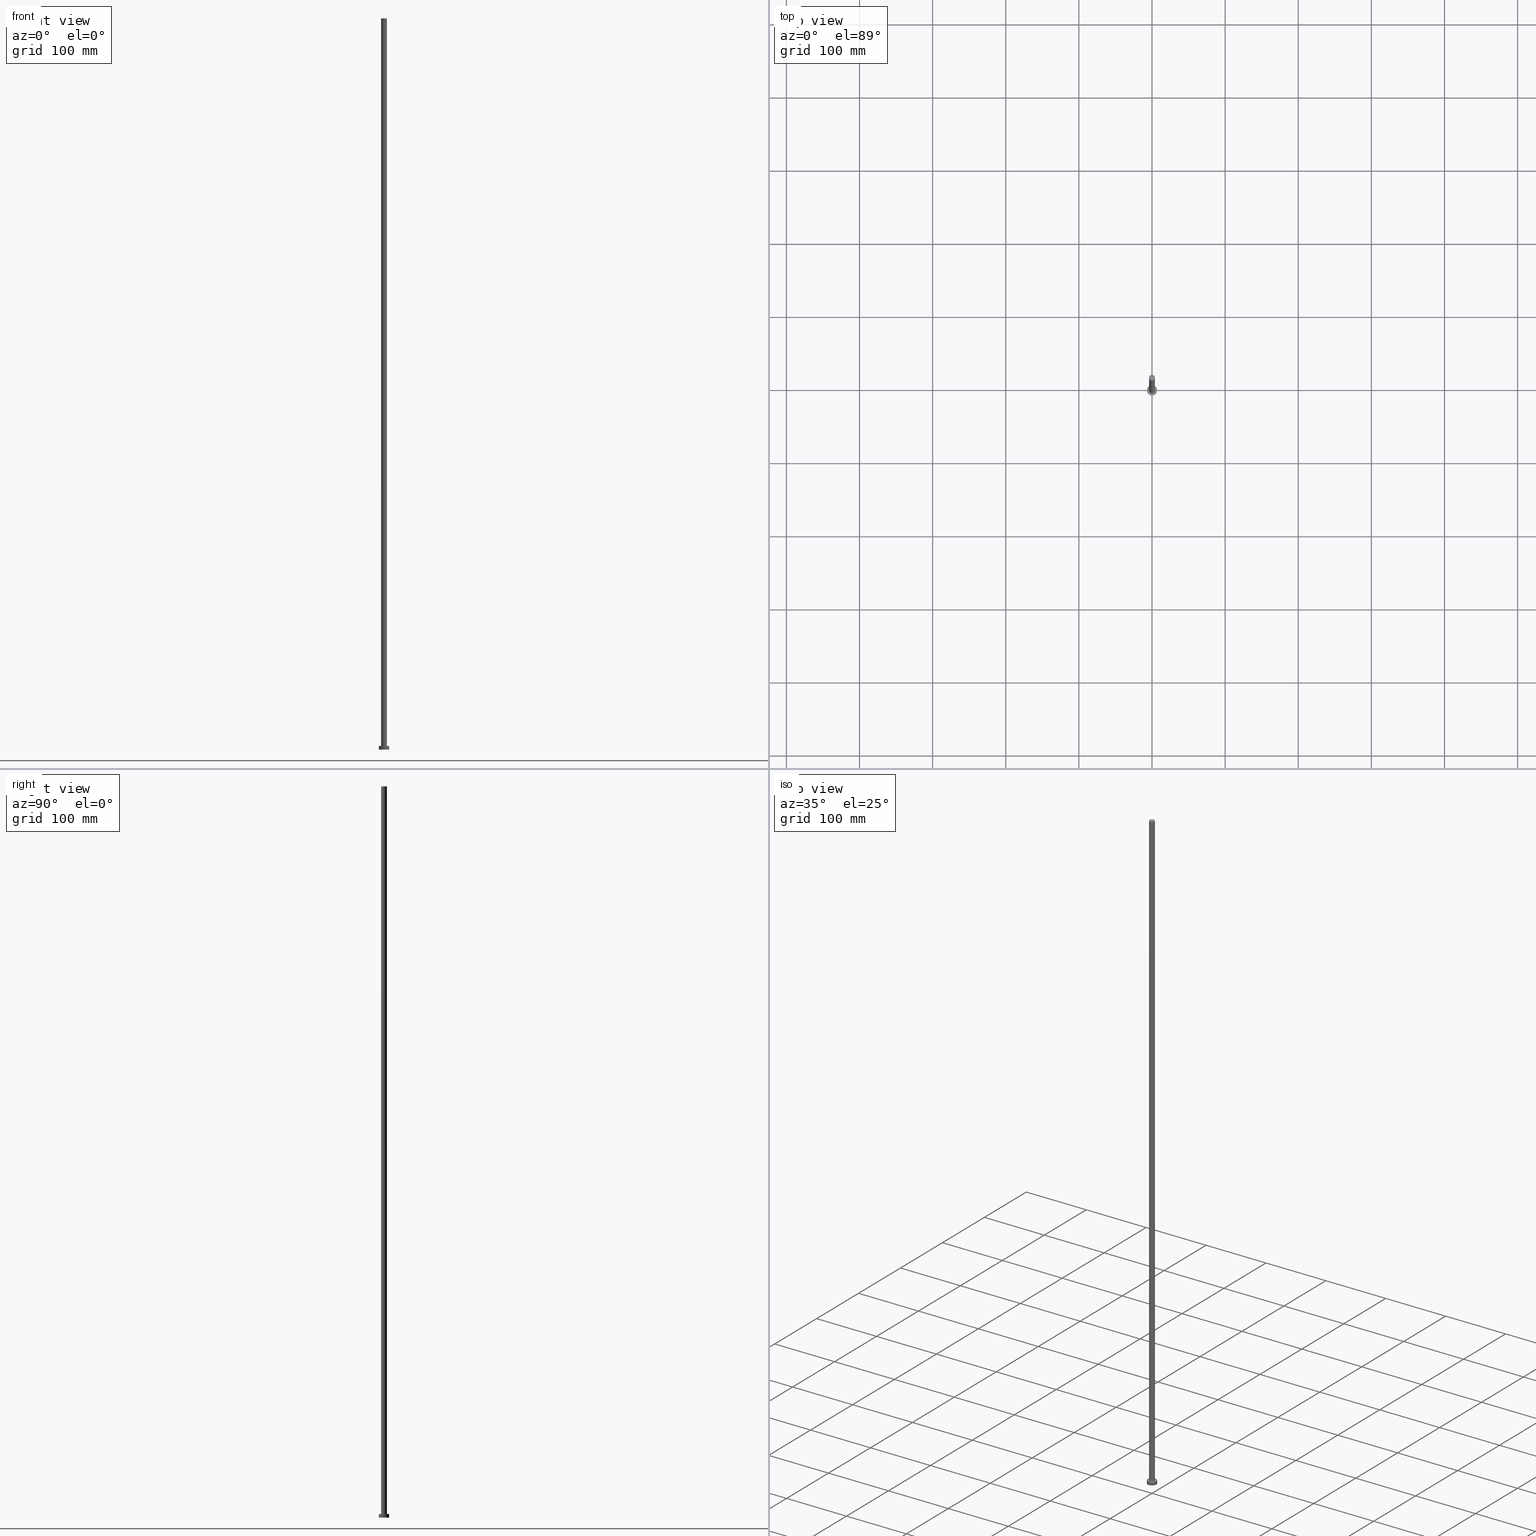
[diagram: canonical four-view strip — front | top / right | iso, engineering-drawing reading convention]
A machine part, canonical four-view strip (front | top / right | iso — engineering-drawing reading convention). The complete STEP part file that produces these views, byte-faithful:
ISO-10303-21;
HEADER;
FILE_DESCRIPTION (( 'STEP AP203' ),
    '1' );
FILE_NAME ('0597.STEP',
    '2023-02-13T12:55:46',
    ( '' ),
    ( '' ),
    'SwSTEP 2.0',
    'SolidWorks 2019',
    '' );
FILE_SCHEMA (( 'CONFIG_CONTROL_DESIGN' ));
ENDSEC;

DATA;
#1 = ORIENTED_EDGE ( 'NONE', *, *, #62, .T. ) ;
#2 = APPLICATION_CONTEXT ( 'configuration controlled 3d designs of mechanical parts and assemblies' ) ;
#3 = DIRECTION ( 'NONE',  ( 1.000000000000000000, 0.000000000000000000, -0.000000000000000000 ) ) ;
#4 = AXIS2_PLACEMENT_3D ( 'NONE', #193, #252, #125 ) ;
#5 = AXIS2_PLACEMENT_3D ( 'NONE', #164, #246, #150 ) ;
#6 = CARTESIAN_POINT ( 'NONE',  ( 0.000000000000000000, 0.000000000000000000, 0.000000000000000000 ) ) ;
#7 = CARTESIAN_POINT ( 'NONE',  ( 0.000000000000000000, 0.000000000000000000, 1000.000000000000000 ) ) ;
#8 = ORIENTED_EDGE ( 'NONE', *, *, #182, .T. ) ;
#9 = DATE_TIME_ROLE ( 'creation_date' ) ;
#10 = CARTESIAN_POINT ( 'NONE',  ( 7.000000000000000000, 8.572527594031473190E-16, 5.000000000000000000 ) ) ;
#11 = DIRECTION ( 'NONE',  ( -0.000000000000000000, -0.000000000000000000, -1.000000000000000000 ) ) ;
#12 = VERTEX_POINT ( 'NONE', #189 ) ;
#13 = CARTESIAN_POINT ( 'NONE',  ( 0.000000000000000000, 0.000000000000000000, 5.000000000000000000 ) ) ;
#14 = FACE_OUTER_BOUND ( 'NONE', #57, .T. ) ;
#15 = AXIS2_PLACEMENT_3D ( 'NONE', #176, #127, #87 ) ;
#16 = DATE_AND_TIME ( #26, #130 ) ;
#17 = CIRCLE ( 'NONE', #30, 4.000000000000000000 ) ;
#18 = APPROVAL_STATUS ( 'not_yet_approved' ) ;
#19 = APPROVAL_ROLE ( '' ) ;
#20 = EDGE_LOOP ( 'NONE', ( #215, #221, #204, #32 ) ) ;
#21 = APPLICATION_PROTOCOL_DEFINITION ( 'international standard', 'config_control_design', 1994, #2 ) ;
#22 = EDGE_LOOP ( 'NONE', ( #39, #185 ) ) ;
#23 = CARTESIAN_POINT ( 'NONE',  ( 7.000000000000000000, 8.572527594031473190E-16, 5.000000000000000000 ) ) ;
#24 = APPLICATION_PROTOCOL_DEFINITION ( 'international standard', 'config_control_design', 1994, #65 ) ;
#25 =( GEOMETRIC_REPRESENTATION_CONTEXT ( 3 ) GLOBAL_UNCERTAINTY_ASSIGNED_CONTEXT ( ( #138 ) ) GLOBAL_UNIT_ASSIGNED_CONTEXT ( ( #155, #177, #108 ) ) REPRESENTATION_CONTEXT ( 'NONE', 'WORKASPACE' ) );
#26 = CALENDAR_DATE ( 2023, 13, 2 ) ;
#27 = APPROVAL ( #18, 'NEUR�EN�' ) ;
#28 = VECTOR ( 'NONE', #165, 1000.000000000000000 ) ;
#29 = PLANE ( 'NONE',  #52 ) ;
#30 = AXIS2_PLACEMENT_3D ( 'NONE', #49, #226, #172 ) ;
#31 = PRODUCT ( '0597', '0597', '', ( #249 ) ) ;
#32 = ORIENTED_EDGE ( 'NONE', *, *, #134, .F. ) ;
#33 = CARTESIAN_POINT ( 'NONE',  ( 0.000000000000000000, 0.000000000000000000, 5.000000000000000000 ) ) ;
#34 = EDGE_LOOP ( 'NONE', ( #1, #8 ) ) ;
#35 = DIRECTION ( 'NONE',  ( -1.000000000000000000, 0.000000000000000000, 0.000000000000000000 ) ) ;
#36 = CARTESIAN_POINT ( 'NONE',  ( -7.000000000000000000, 0.000000000000000000, 5.000000000000000000 ) ) ;
#37 = LINE ( 'NONE', #71, #145 ) ;
#38 = LOCAL_TIME ( 13, 55, 46.00000000000000000, #107 ) ;
#39 = ORIENTED_EDGE ( 'NONE', *, *, #161, .F. ) ;
#40 = CARTESIAN_POINT ( 'NONE',  ( 0.000000000000000000, 0.000000000000000000, 1000.000000000000000 ) ) ;
#41 = AXIS2_PLACEMENT_3D ( 'NONE', #13, #78, #59 ) ;
#42 = ORIENTED_EDGE ( 'NONE', *, *, #62, .F. ) ;
#43 = ADVANCED_FACE ( 'NONE', ( #248 ), #29, .F. ) ;
#44 = VERTEX_POINT ( 'NONE', #136 ) ;
#45 = CARTESIAN_POINT ( 'NONE',  ( 0.000000000000000000, 0.000000000000000000, 5.000000000000000000 ) ) ;
#46 = PERSON_AND_ORGANIZATION_ROLE ( 'design_owner' ) ;
#47 = APPROVAL_PERSON_ORGANIZATION ( #95, #207, #19 ) ;
#48 = DATE_AND_TIME ( #178, #66 ) ;
#49 = CARTESIAN_POINT ( 'NONE',  ( 0.000000000000000000, 0.000000000000000000, 5.000000000000000000 ) ) ;
#50 = DIRECTION ( 'NONE',  ( 1.000000000000000000, 0.000000000000000000, -0.000000000000000000 ) ) ;
#51 = DIRECTION ( 'NONE',  ( -0.000000000000000000, -0.000000000000000000, -1.000000000000000000 ) ) ;
#52 = AXIS2_PLACEMENT_3D ( 'NONE', #6, #113, #50 ) ;
#53 = FACE_OUTER_BOUND ( 'NONE', #201, .T. ) ;
#54 = ORIENTED_EDGE ( 'NONE', *, *, #247, .F. ) ;
#55 = LINE ( 'NONE', #209, #63 ) ;
#56 = AXIS2_PLACEMENT_3D ( 'NONE', #106, #183, #3 ) ;
#57 = EDGE_LOOP ( 'NONE', ( #239, #217, #175, #237 ) ) ;
#58 = CARTESIAN_POINT ( 'NONE',  ( 0.000000000000000000, 0.000000000000000000, 5.000000000000000000 ) ) ;
#59 = DIRECTION ( 'NONE',  ( 1.000000000000000000, 0.000000000000000000, 0.000000000000000000 ) ) ;
#60 = ADVANCED_FACE ( 'NONE', ( #53 ), #202, .T. ) ;
#61 = AXIS2_PLACEMENT_3D ( 'NONE', #205, #70, #167 ) ;
#62 = EDGE_CURVE ( 'NONE', #12, #168, #91, .T. ) ;
#63 = VECTOR ( 'NONE', #128, 1000.000000000000000 ) ;
#64 = PLANE ( 'NONE',  #56 ) ;
#65 = APPLICATION_CONTEXT ( 'configuration controlled 3d designs of mechanical parts and assemblies' ) ;
#66 = LOCAL_TIME ( 13, 55, 46.00000000000000000, #101 ) ;
#67 = ORIENTED_EDGE ( 'NONE', *, *, #190, .F. ) ;
#68 = LOCAL_TIME ( 13, 55, 46.00000000000000000, #220 ) ;
#69 = APPROVAL_ROLE ( '' ) ;
#70 = DIRECTION ( 'NONE',  ( 0.000000000000000000, 0.000000000000000000, 1.000000000000000000 ) ) ;
#71 = CARTESIAN_POINT ( 'NONE',  ( -4.000000000000000000, 0.000000000000000000, 1000.000000000000000 ) ) ;
#72 = FACE_OUTER_BOUND ( 'NONE', #20, .T. ) ;
#73 = CLOSED_SHELL ( 'NONE', ( #212, #187, #60, #236, #43, #240, #243 ) ) ;
#74 = CC_DESIGN_DATE_AND_TIME_ASSIGNMENT ( #255, #157, ( #210 ) ) ;
#75 = COORDINATED_UNIVERSAL_TIME_OFFSET ( 1, 0, .AHEAD. ) ;
#76 = DIRECTION ( 'NONE',  ( 0.000000000000000000, 0.000000000000000000, 1.000000000000000000 ) ) ;
#77 = DIRECTION ( 'NONE',  ( 0.000000000000000000, 0.000000000000000000, 1.000000000000000000 ) ) ;
#78 = DIRECTION ( 'NONE',  ( 0.000000000000000000, 0.000000000000000000, 1.000000000000000000 ) ) ;
#79 = CC_DESIGN_PERSON_AND_ORGANIZATION_ASSIGNMENT ( #228, #46, ( #31 ) ) ;
#80 = EDGE_LOOP ( 'NONE', ( #67, #208 ) ) ;
#81 = FACE_OUTER_BOUND ( 'NONE', #34, .T. ) ;
#82 = AXIS2_PLACEMENT_3D ( 'NONE', #7, #147, #231 ) ;
#83 = MANIFOLD_SOLID_BREP ( 'P�idat vysunut�m3', #73 ) ;
#84 = LOCAL_TIME ( 13, 55, 46.00000000000000000, #75 ) ;
#85 = PERSON_AND_ORGANIZATION_ROLE ( 'classification_officer' ) ;
#86 = ORIENTED_EDGE ( 'NONE', *, *, #134, .T. ) ;
#87 = DIRECTION ( 'NONE',  ( -1.000000000000000000, 0.000000000000000000, 0.000000000000000000 ) ) ;
#88 = APPROVAL ( #133, 'NEUR�EN�' ) ;
#89 = ORIENTED_EDGE ( 'NONE', *, *, #92, .T. ) ;
#90 = SECURITY_CLASSIFICATION_LEVEL ( 'unclassified' ) ;
#91 = CIRCLE ( 'NONE', #5, 7.000000000000000000 ) ;
#92 = EDGE_CURVE ( 'NONE', #44, #139, #218, .T. ) ;
#93 = APPROVAL_STATUS ( 'not_yet_approved' ) ;
#94 = CARTESIAN_POINT ( 'NONE',  ( -4.000000000000000000, 0.000000000000000000, 5.000000000000000000 ) ) ;
#95 = PERSON_AND_ORGANIZATION ( #214, #199 ) ;
#96 = APPROVAL_PERSON_ORGANIZATION ( #227, #88, #69 ) ;
#97 = CC_DESIGN_PERSON_AND_ORGANIZATION_ASSIGNMENT ( #163, #174, ( #140 ) ) ;
#98 = AXIS2_PLACEMENT_3D ( 'NONE', #116, #137, #222 ) ;
#99 = APPROVAL_DATE_TIME ( #16, #88 ) ;
#100 = PRODUCT_DEFINITION_SHAPE ( 'NONE', 'NONE',  #140 ) ;
#101 = COORDINATED_UNIVERSAL_TIME_OFFSET ( 1, 0, .AHEAD. ) ;
#102 = PRODUCT_RELATED_PRODUCT_CATEGORY ( 'detail', '', ( #31 ) ) ;
#103 = APPROVAL_PERSON_ORGANIZATION ( #216, #27, #122 ) ;
#104 = PERSON_AND_ORGANIZATION_ROLE ( 'creator' ) ;
#105 = ORIENTED_EDGE ( 'NONE', *, *, #173, .T. ) ;
#106 = CARTESIAN_POINT ( 'NONE',  ( 0.000000000000000000, 0.000000000000000000, 5.000000000000000000 ) ) ;
#107 = COORDINATED_UNIVERSAL_TIME_OFFSET ( 1, 0, .AHEAD. ) ;
#108 =( NAMED_UNIT ( * ) SI_UNIT ( $, .STERADIAN. ) SOLID_ANGLE_UNIT ( ) );
#109 = EDGE_CURVE ( 'NONE', #168, #146, #206, .T. ) ;
#110 = PERSON_AND_ORGANIZATION ( #214, #199 ) ;
#111 = CC_DESIGN_APPROVAL ( #88, ( #140 ) ) ;
#112 = AXIS2_PLACEMENT_3D ( 'NONE', #115, #76, #188 ) ;
#113 = DIRECTION ( 'NONE',  ( 0.000000000000000000, 0.000000000000000000, 1.000000000000000000 ) ) ;
#114 = AXIS2_PLACEMENT_3D ( 'NONE', #58, #120, #170 ) ;
#115 = CARTESIAN_POINT ( 'NONE',  ( 0.000000000000000000, 0.000000000000000000, 1000.000000000000000 ) ) ;
#116 = CARTESIAN_POINT ( 'NONE',  ( 0.000000000000000000, 0.000000000000000000, 0.000000000000000000 ) ) ;
#117 = CARTESIAN_POINT ( 'NONE',  ( 4.000000000000000000, 4.898587196589411843E-16, 5.000000000000000000 ) ) ;
#118 = CC_DESIGN_PERSON_AND_ORGANIZATION_ASSIGNMENT ( #254, #85, ( #210 ) ) ;
#119 = EDGE_LOOP ( 'NONE', ( #89, #143 ) ) ;
#120 = DIRECTION ( 'NONE',  ( -0.000000000000000000, -0.000000000000000000, -1.000000000000000000 ) ) ;
#121 = AXIS2_PLACEMENT_3D ( 'NONE', #223, #219, #123 ) ;
#122 = APPROVAL_ROLE ( '' ) ;
#123 = DIRECTION ( 'NONE',  ( 1.000000000000000000, 0.000000000000000000, 0.000000000000000000 ) ) ;
#124 = APPROVAL_DATE_TIME ( #224, #207 ) ;
#125 = DIRECTION ( 'NONE',  ( 1.000000000000000000, 0.000000000000000000, -0.000000000000000000 ) ) ;
#126 = CALENDAR_DATE ( 2023, 13, 2 ) ;
#127 = DIRECTION ( 'NONE',  ( -0.000000000000000000, -0.000000000000000000, -1.000000000000000000 ) ) ;
#128 = DIRECTION ( 'NONE',  ( -0.000000000000000000, -0.000000000000000000, -1.000000000000000000 ) ) ;
#129 = FACE_OUTER_BOUND ( 'NONE', #152, .T. ) ;
#130 = LOCAL_TIME ( 13, 55, 46.00000000000000000, #135 ) ;
#131 = APPROVAL_DATE_TIME ( #48, #27 ) ;
#132 = VERTEX_POINT ( 'NONE', #117 ) ;
#133 = APPROVAL_STATUS ( 'not_yet_approved' ) ;
#134 = EDGE_CURVE ( 'NONE', #12, #181, #153, .T. ) ;
#135 = COORDINATED_UNIVERSAL_TIME_OFFSET ( 1, 0, .AHEAD. ) ;
#136 = CARTESIAN_POINT ( 'NONE',  ( -4.000000000000000000, 0.000000000000000000, 1000.000000000000000 ) ) ;
#137 = DIRECTION ( 'NONE',  ( 0.000000000000000000, 0.000000000000000000, 1.000000000000000000 ) ) ;
#138 = UNCERTAINTY_MEASURE_WITH_UNIT (LENGTH_MEASURE( 1.000000000000000082E-05 ), #155, 'distance_accuracy_value', 'NONE');
#139 = VERTEX_POINT ( 'NONE', #169 ) ;
#140 = PRODUCT_DEFINITION ( 'NEZN�M�', '', #158, #225 ) ;
#141 = CC_DESIGN_DATE_AND_TIME_ASSIGNMENT ( #251, #9, ( #140 ) ) ;
#142 = DIRECTION ( 'NONE',  ( 0.000000000000000000, 0.000000000000000000, 1.000000000000000000 ) ) ;
#143 = ORIENTED_EDGE ( 'NONE', *, *, #247, .T. ) ;
#144 = EDGE_CURVE ( 'NONE', #139, #132, #55, .T. ) ;
#145 = VECTOR ( 'NONE', #245, 1000.000000000000000 ) ;
#146 = VERTEX_POINT ( 'NONE', #232 ) ;
#147 = DIRECTION ( 'NONE',  ( -0.000000000000000000, -0.000000000000000000, -1.000000000000000000 ) ) ;
#148 = EDGE_CURVE ( 'NONE', #44, #186, #37, .T. ) ;
#149 = CALENDAR_DATE ( 2023, 13, 2 ) ;
#150 = DIRECTION ( 'NONE',  ( 1.000000000000000000, 0.000000000000000000, 0.000000000000000000 ) ) ;
#151 = AXIS2_PLACEMENT_3D ( 'NONE', #40, #77, #250 ) ;
#152 = EDGE_LOOP ( 'NONE', ( #54, #179, #105, #229 ) ) ;
#153 = LINE ( 'NONE', #36, #171 ) ;
#154 = CC_DESIGN_SECURITY_CLASSIFICATION ( #210, ( #158 ) ) ;
#155 =( LENGTH_UNIT ( ) NAMED_UNIT ( * ) SI_UNIT ( .MILLI., .METRE. ) );
#156 = CC_DESIGN_PERSON_AND_ORGANIZATION_ASSIGNMENT ( #242, #197, ( #158 ) ) ;
#157 = DATE_TIME_ROLE ( 'classification_date' ) ;
#158 = PRODUCT_DEFINITION_FORMATION_WITH_SPECIFIED_SOURCE ( 'LIBOVOLN�', '', #31, .NOT_KNOWN. ) ;
#159 = SHAPE_DEFINITION_REPRESENTATION ( #100, #162 ) ;
#160 = CC_DESIGN_PERSON_AND_ORGANIZATION_ASSIGNMENT ( #110, #104, ( #158 ) ) ;
#161 = EDGE_CURVE ( 'NONE', #181, #146, #200, .T. ) ;
#162 = ADVANCED_BREP_SHAPE_REPRESENTATION ( '0597', ( #83, #61 ), #25 ) ;
#163 = PERSON_AND_ORGANIZATION ( #214, #199 ) ;
#164 = CARTESIAN_POINT ( 'NONE',  ( 0.000000000000000000, 0.000000000000000000, 5.000000000000000000 ) ) ;
#165 = DIRECTION ( 'NONE',  ( -0.000000000000000000, -0.000000000000000000, -1.000000000000000000 ) ) ;
#166 = CC_DESIGN_APPROVAL ( #27, ( #210 ) ) ;
#167 = DIRECTION ( 'NONE',  ( 1.000000000000000000, 0.000000000000000000, 0.000000000000000000 ) ) ;
#168 = VERTEX_POINT ( 'NONE', #23 ) ;
#169 = CARTESIAN_POINT ( 'NONE',  ( 4.000000000000000000, 4.898587196589411843E-16, 1000.000000000000000 ) ) ;
#170 = DIRECTION ( 'NONE',  ( -1.000000000000000000, 0.000000000000000000, 0.000000000000000000 ) ) ;
#171 = VECTOR ( 'NONE', #11, 1000.000000000000000 ) ;
#172 = DIRECTION ( 'NONE',  ( 1.000000000000000000, 0.000000000000000000, 0.000000000000000000 ) ) ;
#173 = EDGE_CURVE ( 'NONE', #132, #186, #184, .T. ) ;
#174 = PERSON_AND_ORGANIZATION_ROLE ( 'creator' ) ;
#175 = ORIENTED_EDGE ( 'NONE', *, *, #148, .T. ) ;
#176 = CARTESIAN_POINT ( 'NONE',  ( 0.000000000000000000, 0.000000000000000000, 1000.000000000000000 ) ) ;
#177 =( NAMED_UNIT ( * ) PLANE_ANGLE_UNIT ( ) SI_UNIT ( $, .RADIAN. ) );
#178 = CALENDAR_DATE ( 2023, 13, 2 ) ;
#179 = ORIENTED_EDGE ( 'NONE', *, *, #144, .T. ) ;
#180 = CALENDAR_DATE ( 2023, 13, 2 ) ;
#181 = VERTEX_POINT ( 'NONE', #191 ) ;
#182 = EDGE_CURVE ( 'NONE', #168, #12, #192, .T. ) ;
#183 = DIRECTION ( 'NONE',  ( 0.000000000000000000, 0.000000000000000000, 1.000000000000000000 ) ) ;
#184 = CIRCLE ( 'NONE', #241, 4.000000000000000000 ) ;
#185 = ORIENTED_EDGE ( 'NONE', *, *, #234, .F. ) ;
#186 = VERTEX_POINT ( 'NONE', #94 ) ;
#187 = ADVANCED_FACE ( 'NONE', ( #72 ), #233, .T. ) ;
#188 = DIRECTION ( 'NONE',  ( 1.000000000000000000, 0.000000000000000000, 0.000000000000000000 ) ) ;
#189 = CARTESIAN_POINT ( 'NONE',  ( -7.000000000000000000, 0.000000000000000000, 5.000000000000000000 ) ) ;
#190 = EDGE_CURVE ( 'NONE', #186, #132, #17, .T. ) ;
#191 = CARTESIAN_POINT ( 'NONE',  ( -7.000000000000000000, 0.000000000000000000, 0.000000000000000000 ) ) ;
#192 = CIRCLE ( 'NONE', #41, 7.000000000000000000 ) ;
#193 = CARTESIAN_POINT ( 'NONE',  ( 0.000000000000000000, 0.000000000000000000, 1000.000000000000000 ) ) ;
#194 = AXIS2_PLACEMENT_3D ( 'NONE', #33, #51, #35 ) ;
#195 = FACE_OUTER_BOUND ( 'NONE', #119, .T. ) ;
#196 = CIRCLE ( 'NONE', #151, 4.000000000000000000 ) ;
#197 = PERSON_AND_ORGANIZATION_ROLE ( 'design_supplier' ) ;
#198 = CYLINDRICAL_SURFACE ( 'NONE', #15, 4.000000000000000000 ) ;
#199 = ORGANIZATION ( 'NEUR�EN�', 'NEUR�EN�', '' ) ;
#200 = CIRCLE ( 'NONE', #98, 7.000000000000000000 ) ;
#201 = EDGE_LOOP ( 'NONE', ( #230, #42, #86, #203 ) ) ;
#202 = CYLINDRICAL_SURFACE ( 'NONE', #194, 7.000000000000000000 ) ;
#203 = ORIENTED_EDGE ( 'NONE', *, *, #161, .T. ) ;
#204 = ORIENTED_EDGE ( 'NONE', *, *, #234, .T. ) ;
#205 = CARTESIAN_POINT ( 'NONE',  ( 0.000000000000000000, 0.000000000000000000, 0.000000000000000000 ) ) ;
#206 = LINE ( 'NONE', #10, #28 ) ;
#207 = APPROVAL ( #93, 'NEUR�EN�' ) ;
#208 = ORIENTED_EDGE ( 'NONE', *, *, #173, .F. ) ;
#209 = CARTESIAN_POINT ( 'NONE',  ( 4.000000000000000000, 4.898587196589411843E-16, 1000.000000000000000 ) ) ;
#210 = SECURITY_CLASSIFICATION ( '', '', #90 ) ;
#211 = DIRECTION ( 'NONE',  ( 1.000000000000000000, 0.000000000000000000, 0.000000000000000000 ) ) ;
#212 = ADVANCED_FACE ( 'NONE', ( #129 ), #198, .T. ) ;
#213 = PLANE ( 'NONE',  #4 ) ;
#214 = PERSON ( 'NEUR�EN�', 'NEUR�EN�', 'NEUR�EN�', ('NEUR�EN�'), ('NEUR�EN�'), ('NEUR�EN�') ) ;
#215 = ORIENTED_EDGE ( 'NONE', *, *, #182, .F. ) ;
#216 = PERSON_AND_ORGANIZATION ( #214, #199 ) ;
#217 = ORIENTED_EDGE ( 'NONE', *, *, #92, .F. ) ;
#218 = CIRCLE ( 'NONE', #112, 4.000000000000000000 ) ;
#219 = DIRECTION ( 'NONE',  ( 0.000000000000000000, 0.000000000000000000, 1.000000000000000000 ) ) ;
#220 = COORDINATED_UNIVERSAL_TIME_OFFSET ( 1, 0, .AHEAD. ) ;
#221 = ORIENTED_EDGE ( 'NONE', *, *, #109, .T. ) ;
#222 = DIRECTION ( 'NONE',  ( 1.000000000000000000, 0.000000000000000000, 0.000000000000000000 ) ) ;
#223 = CARTESIAN_POINT ( 'NONE',  ( 0.000000000000000000, 0.000000000000000000, 0.000000000000000000 ) ) ;
#224 = DATE_AND_TIME ( #126, #68 ) ;
#225 = DESIGN_CONTEXT ( 'detailed design', #65, 'design' ) ;
#226 = DIRECTION ( 'NONE',  ( 0.000000000000000000, 0.000000000000000000, 1.000000000000000000 ) ) ;
#227 = PERSON_AND_ORGANIZATION ( #214, #199 ) ;
#228 = PERSON_AND_ORGANIZATION ( #214, #199 ) ;
#229 = ORIENTED_EDGE ( 'NONE', *, *, #148, .F. ) ;
#230 = ORIENTED_EDGE ( 'NONE', *, *, #109, .F. ) ;
#231 = DIRECTION ( 'NONE',  ( -1.000000000000000000, 0.000000000000000000, 0.000000000000000000 ) ) ;
#232 = CARTESIAN_POINT ( 'NONE',  ( 7.000000000000000000, 8.572527594031473190E-16, 0.000000000000000000 ) ) ;
#233 = CYLINDRICAL_SURFACE ( 'NONE', #114, 7.000000000000000000 ) ;
#234 = EDGE_CURVE ( 'NONE', #146, #181, #244, .T. ) ;
#235 = CYLINDRICAL_SURFACE ( 'NONE', #82, 4.000000000000000000 ) ;
#236 = ADVANCED_FACE ( 'NONE', ( #253, #81 ), #64, .T. ) ;
#237 = ORIENTED_EDGE ( 'NONE', *, *, #190, .T. ) ;
#238 = CC_DESIGN_APPROVAL ( #207, ( #158 ) ) ;
#239 = ORIENTED_EDGE ( 'NONE', *, *, #144, .F. ) ;
#240 = ADVANCED_FACE ( 'NONE', ( #14 ), #235, .T. ) ;
#241 = AXIS2_PLACEMENT_3D ( 'NONE', #45, #142, #211 ) ;
#242 = PERSON_AND_ORGANIZATION ( #214, #199 ) ;
#243 = ADVANCED_FACE ( 'NONE', ( #195 ), #213, .T. ) ;
#244 = CIRCLE ( 'NONE', #121, 7.000000000000000000 ) ;
#245 = DIRECTION ( 'NONE',  ( -0.000000000000000000, -0.000000000000000000, -1.000000000000000000 ) ) ;
#246 = DIRECTION ( 'NONE',  ( 0.000000000000000000, 0.000000000000000000, 1.000000000000000000 ) ) ;
#247 = EDGE_CURVE ( 'NONE', #139, #44, #196, .T. ) ;
#248 = FACE_OUTER_BOUND ( 'NONE', #22, .T. ) ;
#249 = MECHANICAL_CONTEXT ( 'NONE', #2, 'mechanical' ) ;
#250 = DIRECTION ( 'NONE',  ( 1.000000000000000000, 0.000000000000000000, 0.000000000000000000 ) ) ;
#251 = DATE_AND_TIME ( #149, #84 ) ;
#252 = DIRECTION ( 'NONE',  ( 0.000000000000000000, 0.000000000000000000, 1.000000000000000000 ) ) ;
#253 = FACE_BOUND ( 'NONE', #80, .T. ) ;
#254 = PERSON_AND_ORGANIZATION ( #214, #199 ) ;
#255 = DATE_AND_TIME ( #180, #38 ) ;
ENDSEC;
END-ISO-10303-21;
